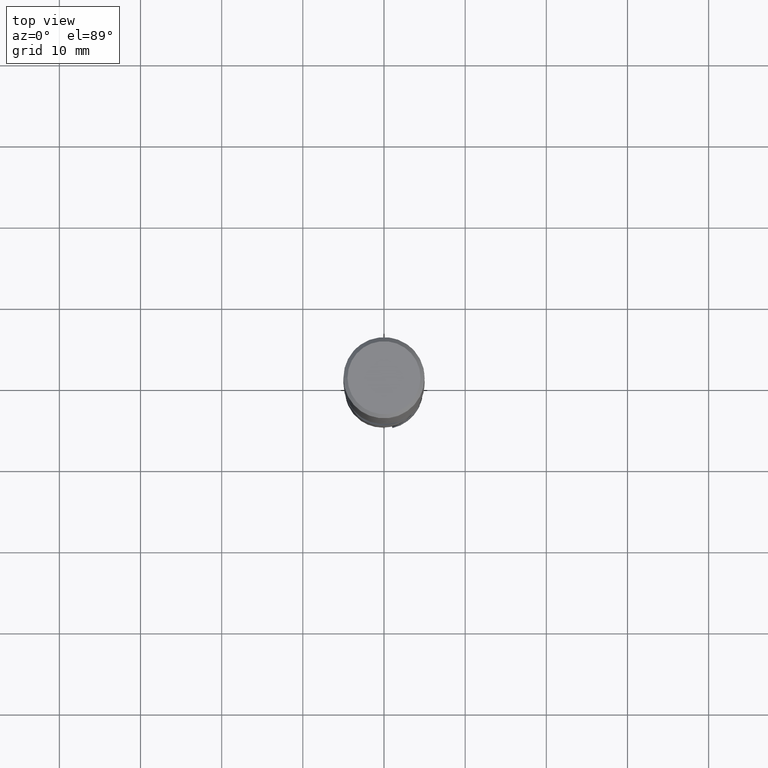
[diagram: clean part render]
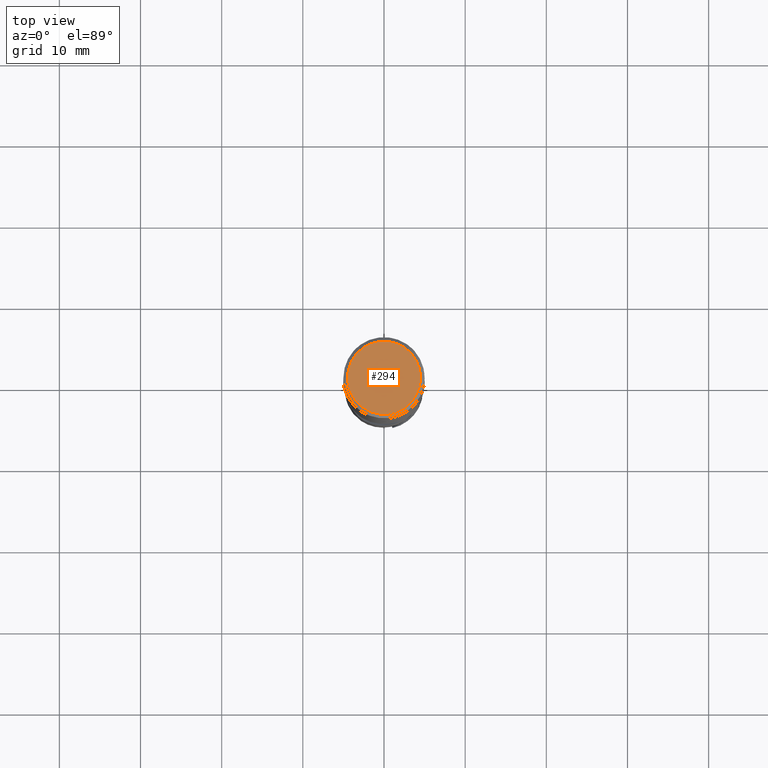
[diagram: same view with one face highlighted and labeled with its STEP entity id]
A machine part, top view. The second image highlights one B-rep face of the part: STEP entity #294.
In plain terms, the highlighted planar face has unit normal (-0, -0, 1).
Its self-contained STEP definition (entity closure, byte-faithful):
#254 = VERTEX_POINT('', #255);
#255 = CARTESIAN_POINT('', (-4.5, 2.75545529808154E-16, 0.));
#261 = EDGE_CURVE('', #254, #254, #262, .T.);
#262 = CIRCLE('', #263, 4.5);
#263 = AXIS2_PLACEMENT_3D('', #264, #265, #266);
#264 = CARTESIAN_POINT('', (-2.18952885050753E-47, 1.25267077750159E-64, -7.44237865339621E-80));
#265 = DIRECTION('', (3.74939945665464E-33, 6.12323399573677E-17, -1.));
#266 = DIRECTION('', (-1., 6.12323399573677E-17, 0.));
#294 = ADVANCED_FACE('', (#295), #298, .T.);
#295 = FACE_OUTER_BOUND('', #296, .T.);
#296 = EDGE_LOOP('', (#297));
#297 = ORIENTED_EDGE('', *, *, #261, .F.);
#298 = PLANE('', #299);
#299 = AXIS2_PLACEMENT_3D('', #300, #301, #302);
#300 = CARTESIAN_POINT('', (7.00035713374682, -7.00035713374682, -4.28648247836569E-16));
#301 = DIRECTION('', (-1.57898385724467E-15, -1.64021619720204E-15, 1.));
#302 = DIRECTION('', (0., 1., 1.64021619720204E-15));